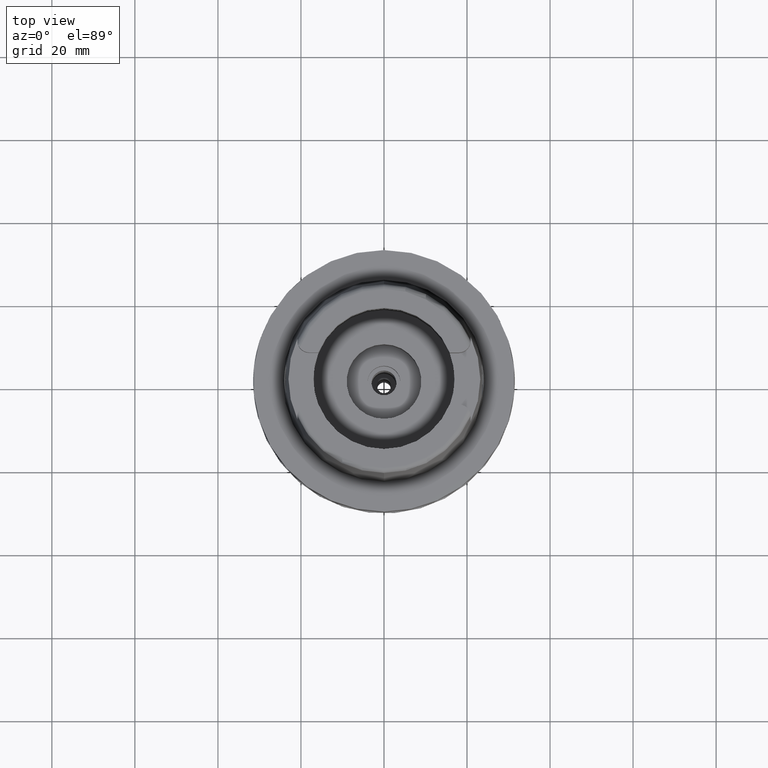
[diagram: clean part render]
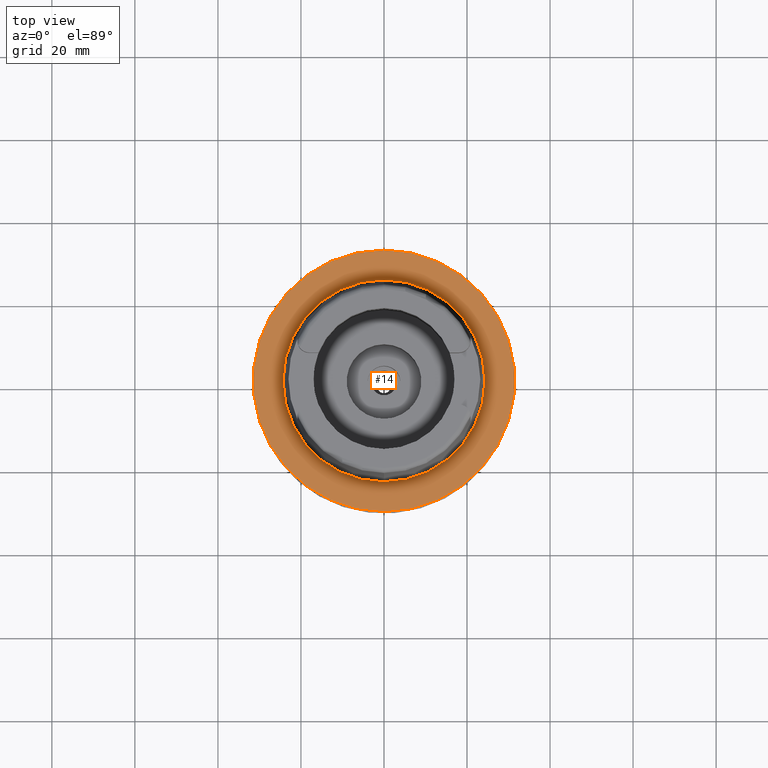
[diagram: same view with one face highlighted and labeled with its STEP entity id]
A machine part, top view. The second image highlights one B-rep face of the part: STEP entity #14.
In plain terms, the highlighted planar face has unit normal (0, 0, -1).
Its self-contained STEP definition (entity closure, byte-faithful):
#14 = ADVANCED_FACE ( 'NONE', ( #4952, #1592 ), #2024, .F. ) ;
#468 = ORIENTED_EDGE ( 'NONE', *, *, #4779, .F. ) ;
#538 = CARTESIAN_POINT ( 'NONE',  ( 0.0000000000000000000, -31.50000000000000000, 2.842170943039999687E-14 ) ) ;
#664 = CIRCLE ( 'NONE', #1699, 24.31503482328999866 ) ;
#683 = ORIENTED_EDGE ( 'NONE', *, *, #3301, .F. ) ;
#785 = CARTESIAN_POINT ( 'NONE',  ( 0.0000000000000000000, 31.50000000000000000, 2.842170943039999687E-14 ) ) ;
#865 = EDGE_CURVE ( 'NONE', #1132, #2322, #664, .T. ) ;
#1132 = VERTEX_POINT ( 'NONE', #3082 ) ;
#1157 = CARTESIAN_POINT ( 'NONE',  ( 0.0000000000000000000, 1.224646799146999965E-14, 0.0000000000000000000 ) ) ;
#1181 = CARTESIAN_POINT ( 'NONE',  ( 0.0000000000000000000, 24.31503482328999866, 1.136868377215999875E-13 ) ) ;
#1360 = CARTESIAN_POINT ( 'NONE',  ( 0.0000000000000000000, 1.707341335030999953E-14, 2.842170943039999687E-14 ) ) ;
#1439 = AXIS2_PLACEMENT_3D ( 'NONE', #4487, #4807, #1490 ) ;
#1476 = DIRECTION ( 'NONE',  ( 0.0000000000000000000, 0.0000000000000000000, -1.000000000000000000 ) ) ;
#1490 = DIRECTION ( 'NONE',  ( 0.0000000000000000000, 1.000000000000000000, 0.0000000000000000000 ) ) ;
#1494 = DIRECTION ( 'NONE',  ( 0.0000000000000000000, 0.0000000000000000000, -1.000000000000000000 ) ) ;
#1537 = ORIENTED_EDGE ( 'NONE', *, *, #5462, .F. ) ;
#1592 = FACE_BOUND ( 'NONE', #3733, .T. ) ;
#1699 = AXIS2_PLACEMENT_3D ( 'NONE', #3751, #5449, #2386 ) ;
#1807 = AXIS2_PLACEMENT_3D ( 'NONE', #2835, #1494, #4877 ) ;
#2024 = PLANE ( 'NONE',  #5166 ) ;
#2265 = ORIENTED_EDGE ( 'NONE', *, *, #865, .F. ) ;
#2322 = VERTEX_POINT ( 'NONE', #1181 ) ;
#2386 = DIRECTION ( 'NONE',  ( 0.0000000000000000000, -1.000000000000000000, 0.0000000000000000000 ) ) ;
#2508 = CIRCLE ( 'NONE', #1439, 24.31503482328999866 ) ;
#2603 = AXIS2_PLACEMENT_3D ( 'NONE', #1360, #1476, #3570 ) ;
#2835 = CARTESIAN_POINT ( 'NONE',  ( 0.0000000000000000000, 1.707341335030999953E-14, 2.842170943039999687E-14 ) ) ;
#2852 = DIRECTION ( 'NONE',  ( 0.0000000000000000000, 0.0000000000000000000, -1.000000000000000000 ) ) ;
#3082 = CARTESIAN_POINT ( 'NONE',  ( 0.0000000000000000000, -24.31503482328999866, 1.882938249763999678E-13 ) ) ;
#3290 = DIRECTION ( 'NONE',  ( 0.0000000000000000000, -1.000000000000000000, 0.0000000000000000000 ) ) ;
#3301 = EDGE_CURVE ( 'NONE', #2322, #1132, #2508, .T. ) ;
#3570 = DIRECTION ( 'NONE',  ( 0.0000000000000000000, -1.000000000000000000, 0.0000000000000000000 ) ) ;
#3692 = CIRCLE ( 'NONE', #2603, 31.50000000000000000 ) ;
#3733 = EDGE_LOOP ( 'NONE', ( #683, #2265 ) ) ;
#3751 = CARTESIAN_POINT ( 'NONE',  ( 0.0000000000000000000, 1.413609354011999823E-14, 1.136868377215999875E-13 ) ) ;
#4047 = VERTEX_POINT ( 'NONE', #538 ) ;
#4487 = CARTESIAN_POINT ( 'NONE',  ( 0.0000000000000000000, 1.413609354011999823E-14, 1.136868377215999875E-13 ) ) ;
#4779 = EDGE_CURVE ( 'NONE', #4047, #5145, #3692, .T. ) ;
#4807 = DIRECTION ( 'NONE',  ( 0.0000000000000000000, 0.0000000000000000000, 1.000000000000000000 ) ) ;
#4877 = DIRECTION ( 'NONE',  ( 0.0000000000000000000, 1.000000000000000000, 0.0000000000000000000 ) ) ;
#4891 = EDGE_LOOP ( 'NONE', ( #1537, #468 ) ) ;
#4919 = CIRCLE ( 'NONE', #1807, 31.50000000000000000 ) ;
#4952 = FACE_OUTER_BOUND ( 'NONE', #4891, .T. ) ;
#5145 = VERTEX_POINT ( 'NONE', #785 ) ;
#5166 = AXIS2_PLACEMENT_3D ( 'NONE', #1157, #2852, #3290 ) ;
#5449 = DIRECTION ( 'NONE',  ( 0.0000000000000000000, 0.0000000000000000000, 1.000000000000000000 ) ) ;
#5462 = EDGE_CURVE ( 'NONE', #5145, #4047, #4919, .T. ) ;